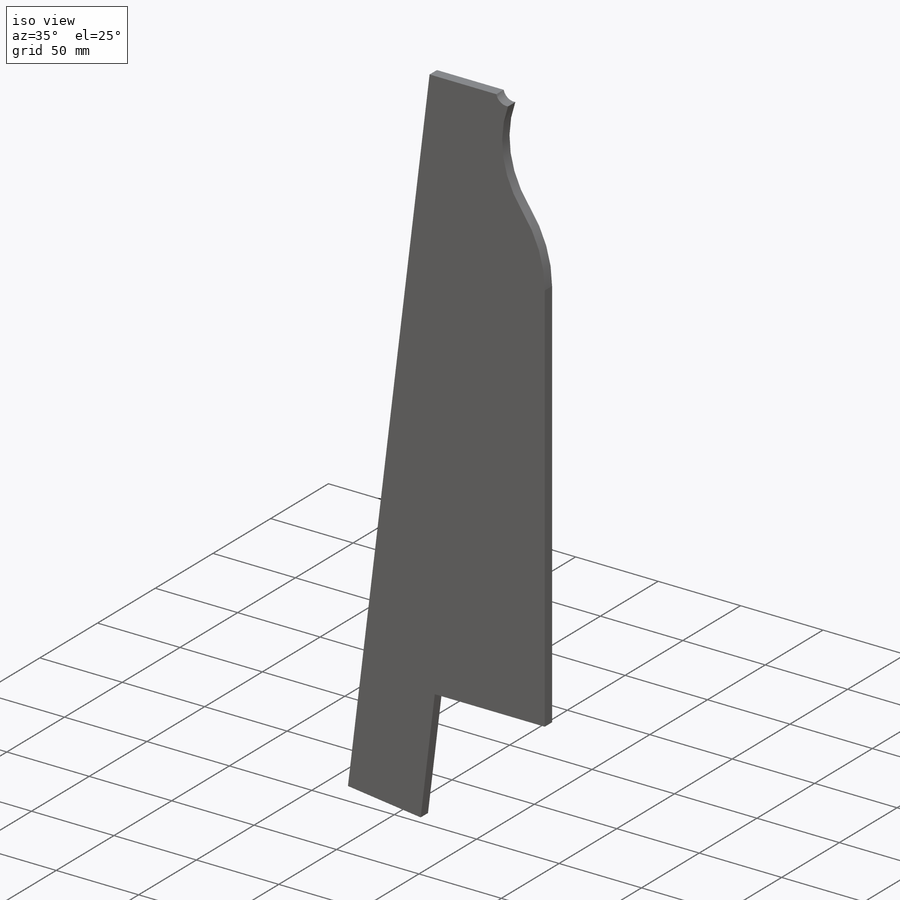
[diagram: iso view]
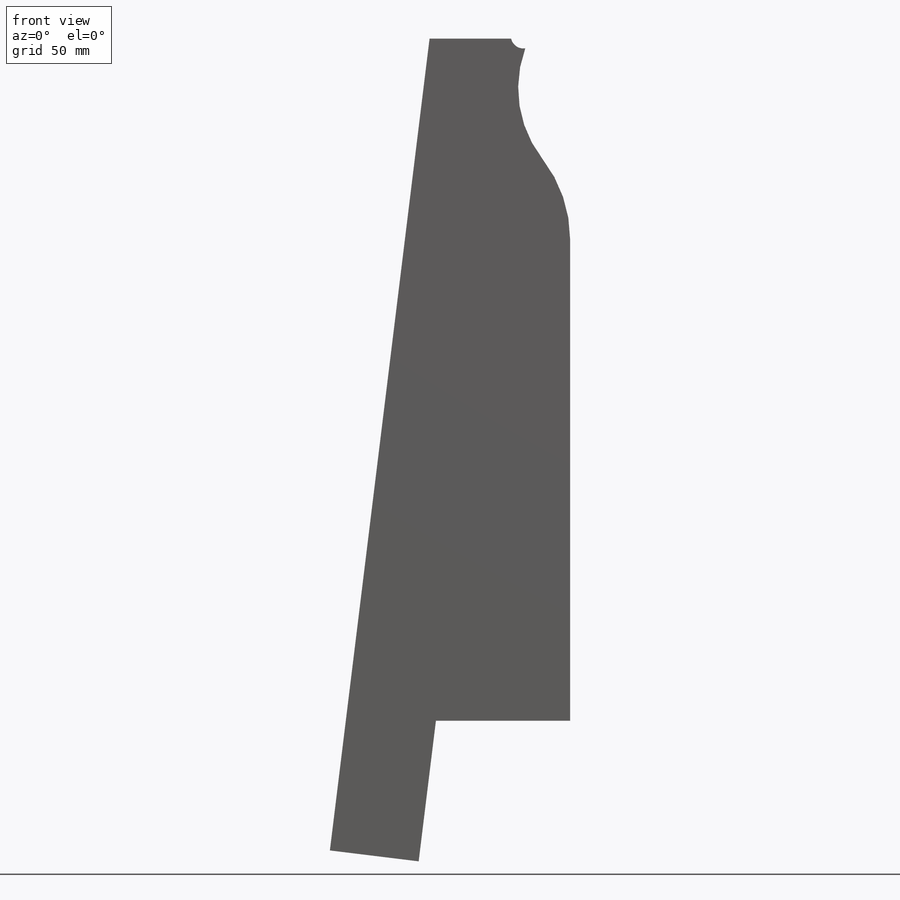
[diagram: front view]
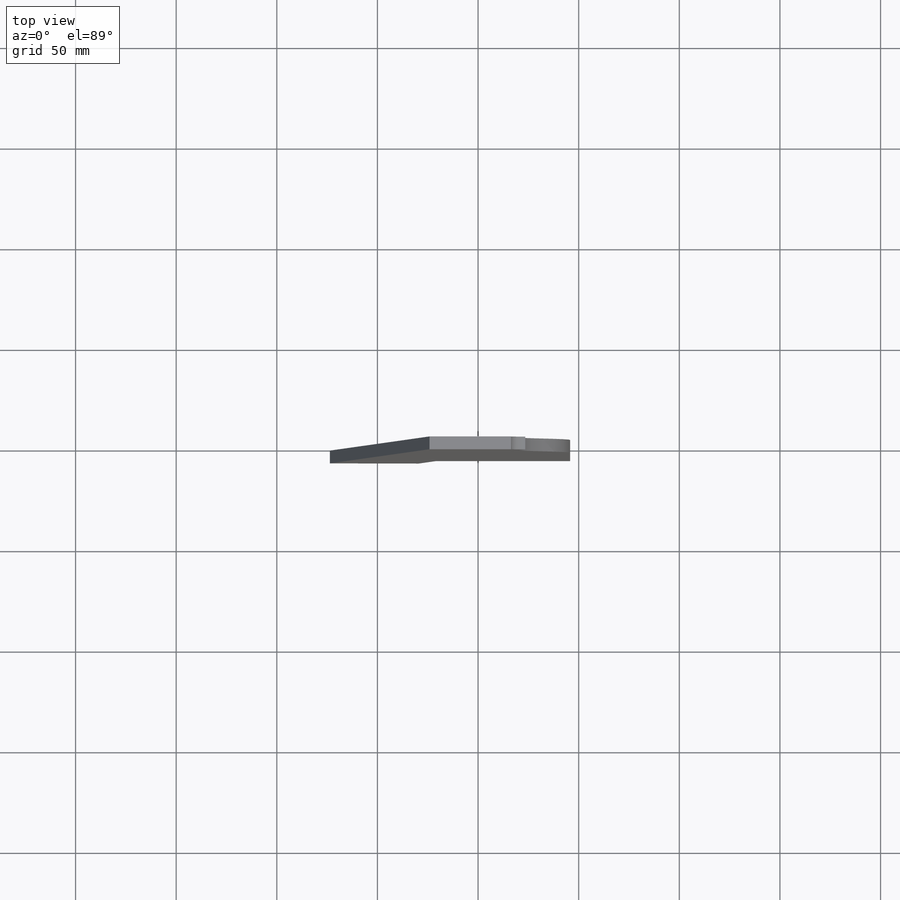
[diagram: top view]
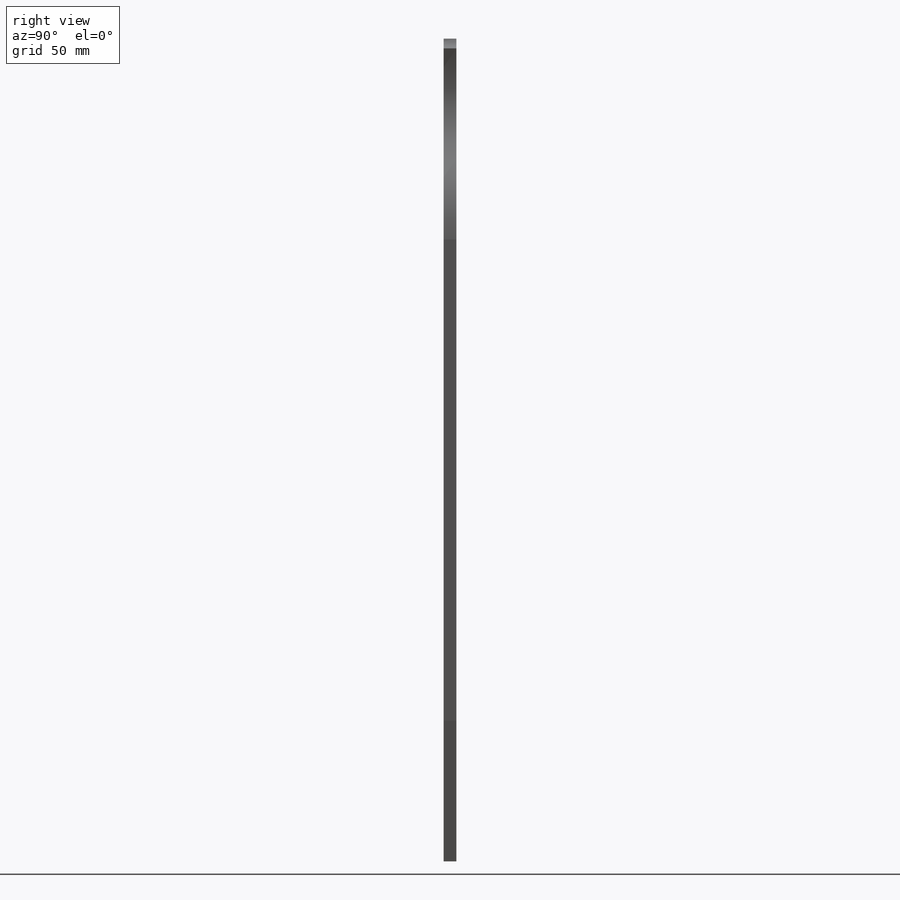
[diagram: right view]
SOLIDWORKS PART (.sldprt)
format: sldprt  version: not decoded by parser v0  size: 154,624 bytes
history: native  units: mm
features: sketch x3, cut_extrude x2, material x1, extrude x1 (+13 scaffold rows collapsed)
feature tree (20):
  scaffold x13  (default folders/planes/origin — collapsed)
  material  "Material <not specified>"
  sketch  "Sketch1"  dims[c1.D1=~42.239051mm c2.D1=83.0deg c3.D1=406.4mm c3.D2=44.45mm c3.D3=~184.199449mm c4.D3=83.0deg c4.D4=88.9mm c4.D5=76.2mm c4.D6=31.75mm c4.D7=254.0mm c4.D8=38.1mm c5.D5=69.85mm]
  extrude  "Boss-Extrude1"  Depth=6.35mm
  sketch  "Sketch2"  dims[D1=12.7mm]
  cut_extrude  "Cut-Extrude1"  Depth=6.35mm
  sketch  "Sketch4"
  cut_extrude  "Cut-Extrude4"  Depth=6.35mm
decode coverage: 5 of 6 modeling features carry decoded parameters
note: ~ marks probable driven/reference dimensions
note: suppression state not decoded; provenance and decode notes live in map.json
